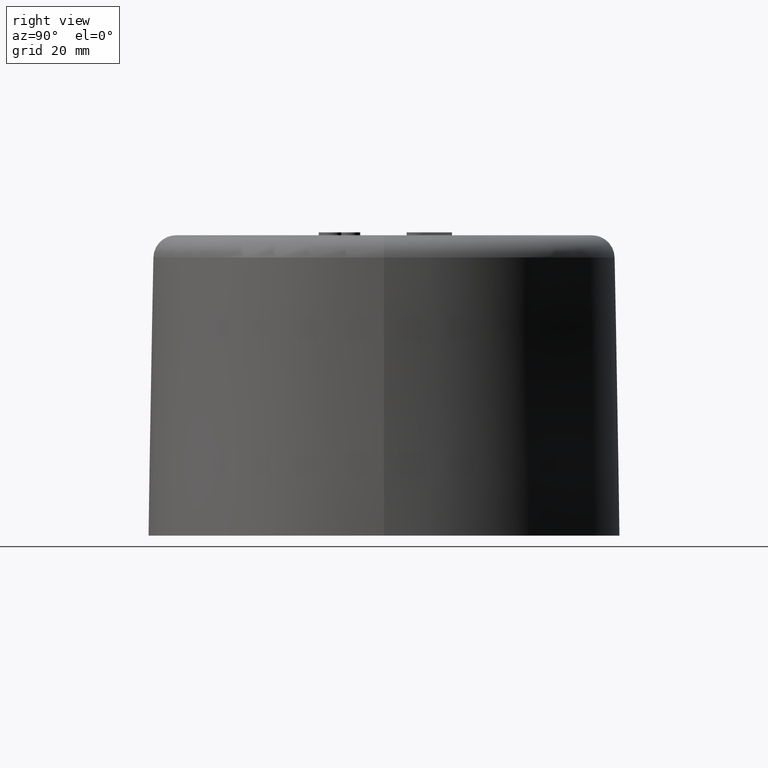
[diagram: clean part render]
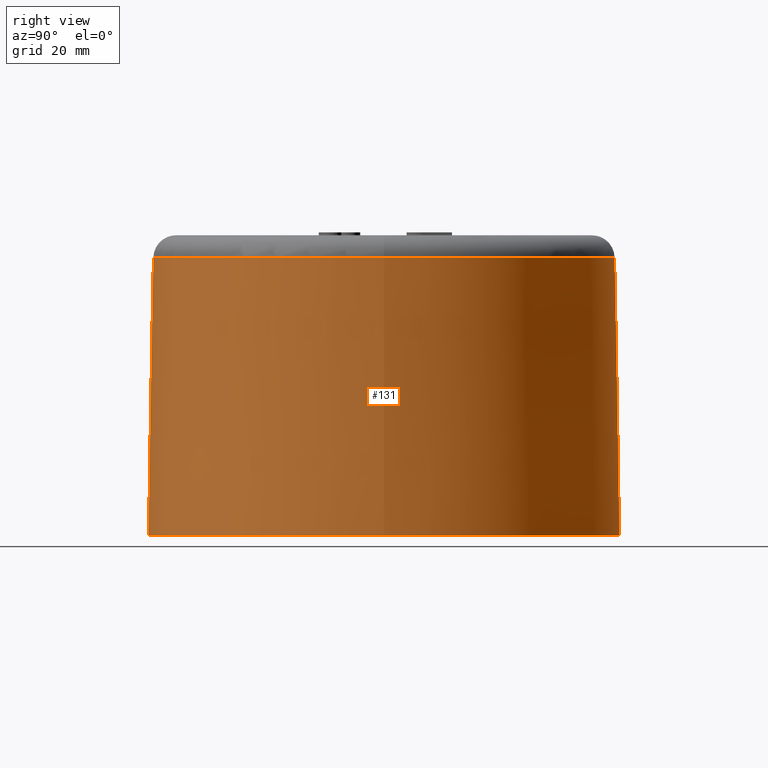
[diagram: same view with one face highlighted and labeled with its STEP entity id]
A machine part, right view. The second image highlights one B-rep face of the part: STEP entity #131.
In plain terms, the highlighted conical surface has half-angle 1 deg.
Its self-contained STEP definition (entity closure, byte-faithful):
#131 = ADVANCED_FACE( '', ( #270, #271 ), #272, .T. );
#270 = FACE_BOUND( '', #428, .T. );
#271 = FACE_OUTER_BOUND( '', #429, .T. );
#272 = CONICAL_SURFACE( '', #430, 41.5868336073372, 0.0174532925199434 );
#428 = EDGE_LOOP( '', ( #958 ) );
#429 = EDGE_LOOP( '', ( #959 ) );
#430 = AXIS2_PLACEMENT_3D( '', #960, #961, #962 );
#958 = ORIENTED_EDGE( '', *, *, #1207, .F. );
#959 = ORIENTED_EDGE( '', *, *, #1109, .T. );
#960 = CARTESIAN_POINT( '', ( 1.69948271264483E-030, 0.000000000000000, -2.77555756156289E-014 ) );
#961 = DIRECTION( '', ( 6.12303176911189E-017, 0.000000000000000, -1.00000000000000 ) );
#962 = DIRECTION( '', ( -1.00000000000000, 0.000000000000000, -6.12303176911189E-017 ) );
#1109 = EDGE_CURVE( '', #1313, #1313, #1314, .T. );
#1207 = EDGE_CURVE( '', #1467, #1467, #1468, .T. );
#1313 = VERTEX_POINT( '', #1712 );
#1314 = CIRCLE( '', #1713, 41.5868336073372 );
#1467 = VERTEX_POINT( '', #2098 );
#1468 = CIRCLE( '', #2099, 40.7303168943044 );
#1712 = CARTESIAN_POINT( '', ( 41.5868336073372, 0.000000000000000, -2.52092005820840E-014 ) );
#1713 = AXIS2_PLACEMENT_3D( '', #2149, #2150, #2151 );
#2098 = CARTESIAN_POINT( '', ( 40.7303168943044, 0.000000000000000, 49.0698096257491 ) );
#2099 = AXIS2_PLACEMENT_3D( '', #2235, #2236, #2237 );
#2149 = CARTESIAN_POINT( '', ( 1.69948271264483E-030, 0.000000000000000, -2.77555756156289E-014 ) );
#2150 = DIRECTION( '', ( -6.12303176911189E-017, 0.000000000000000, 1.00000000000000 ) );
#2151 = DIRECTION( '', ( 1.00000000000000, 0.000000000000000, 6.12303176911189E-017 ) );
#2235 = CARTESIAN_POINT( '', ( -3.00456003242734E-015, 0.000000000000000, 49.0698096257491 ) );
#2236 = DIRECTION( '', ( -6.12303176911189E-017, 0.000000000000000, 1.00000000000000 ) );
#2237 = DIRECTION( '', ( 1.00000000000000, 0.000000000000000, 6.12303176911189E-017 ) );